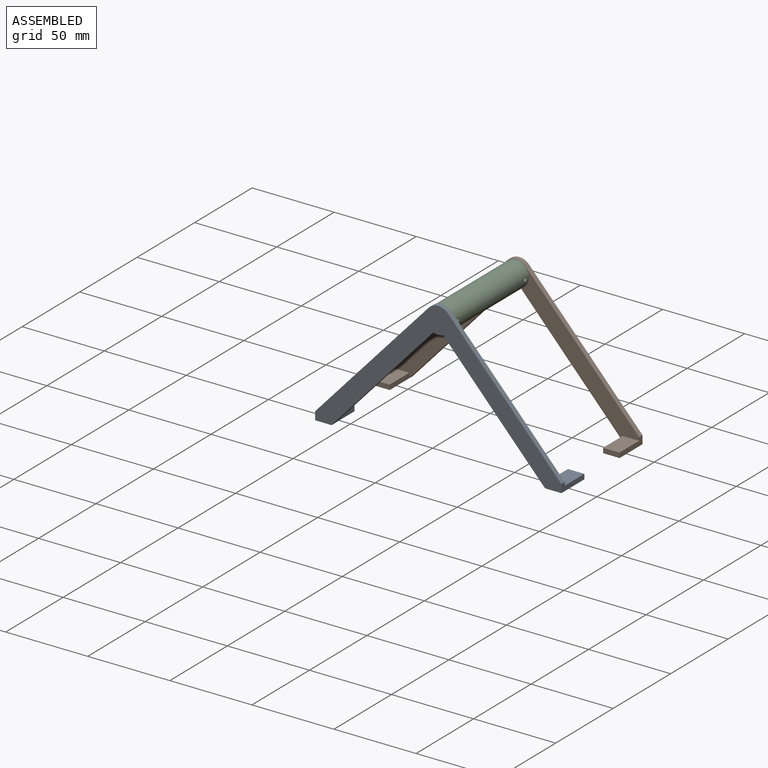
[diagram: assembled view]
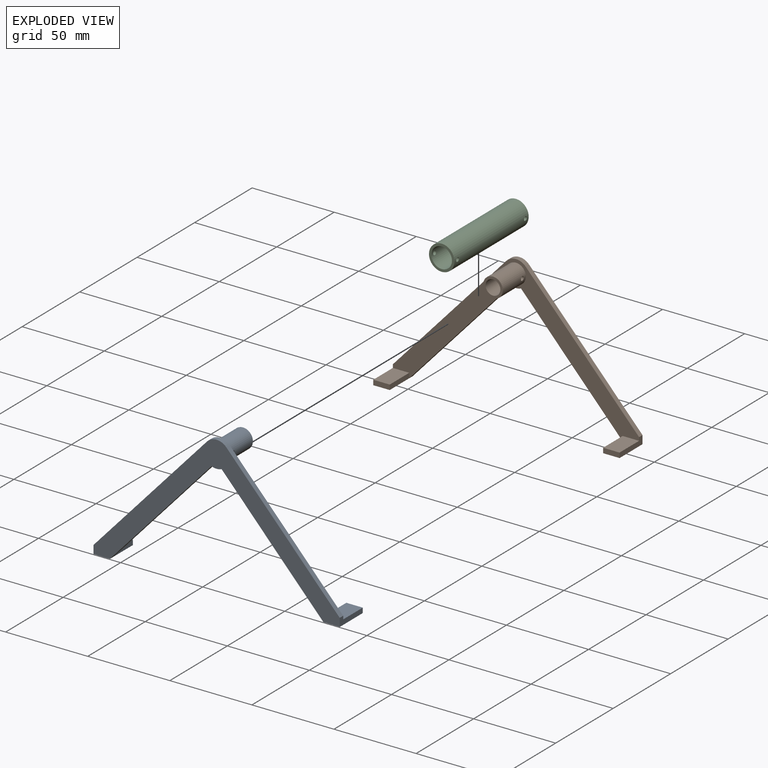
[diagram: exploded view]
GUIDED TOUR — MATED ASSEMBLY (Onshape document 33ff3acba00f217c9bf932b7, AutoMate assembly 33ff3acba00f217c9bf932b7_6a338ac31f6285e5d6c08767_4435f5d66699d6da19a7202c_default)

This assembly has 3 components, labeled P0..P2 below (a component is one placed occurrence of a part; the same part can appear more than once), held together by 2 mates. A mate is a constraint between two components; its type names the relative motion it leaves free:
  FASTENED — locks the two components together rigidly (no relative motion).
Axis/direction vectors are unit vectors and 'through' points are millimeter coordinates, both in the assembly's world frame.

MATES
  1. FASTENED "Fastened 2": P1 <-> P2, direction (0.000, 1.000, 0.000) through (-38.44, 56.01, 66.66) mm
  2. FASTENED "Fastened 1": P0 <-> P2, direction (0.000, -1.000, 0.000) through (-38.44, -8.59, 66.66) mm

ASSEMBLY ORDER
  1. P1 — the base component [order verified]
  2. P0 [order verified]
  3. P2 [order verified]
Order-tag legend:
  [order verified] — this step's position reverses a verified removal order: the component was checked to insert without passing through the ones already placed.

Of the 3 components, 3 carry the full construction recipe — the FeatureScript program that regenerates the part's solid from scratch; the rest are supplied as boundary geometry only.
Each toured component is shown spotlighted twice — in the assembled view, then in the exploded view, where a leader line traces a displaced component back to its assembled socket (saturated green if recipe-attached, orange if geometry-only; every other component desaturated gray) — followed by its recipe or geometry summary and the mates that hold it.
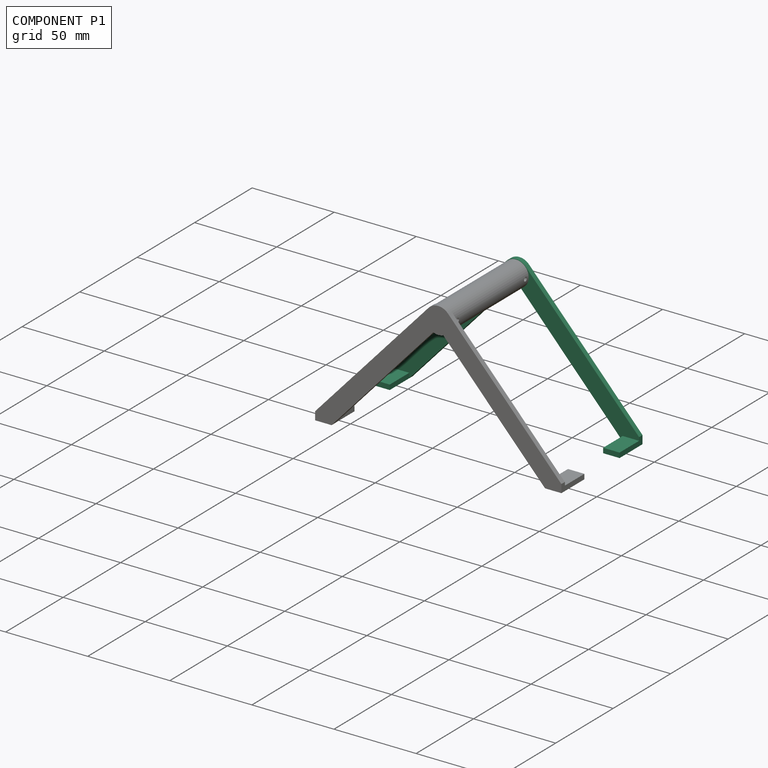
[diagram: component P1 — assembled]
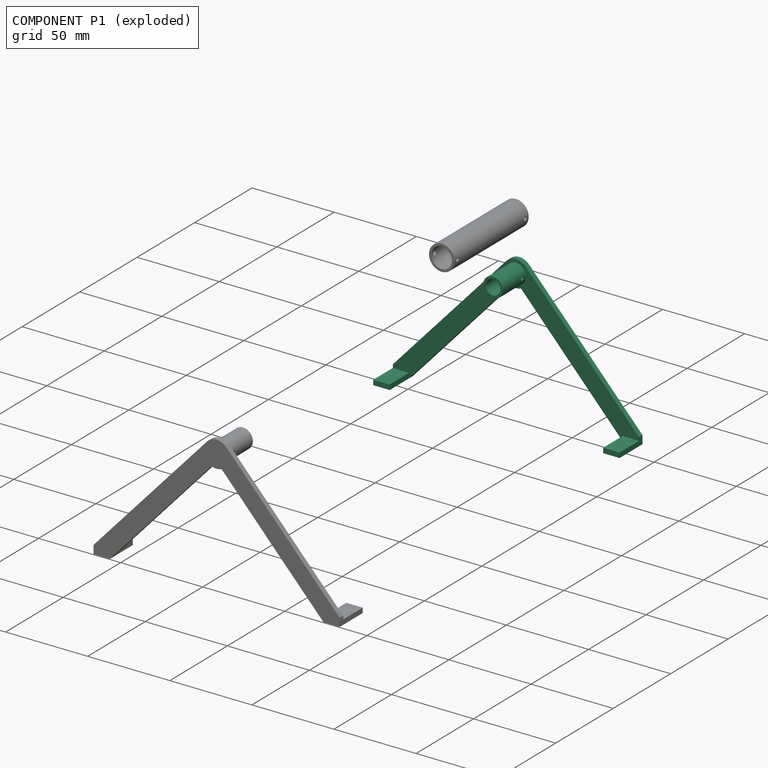
[diagram: component P1 — exploded]
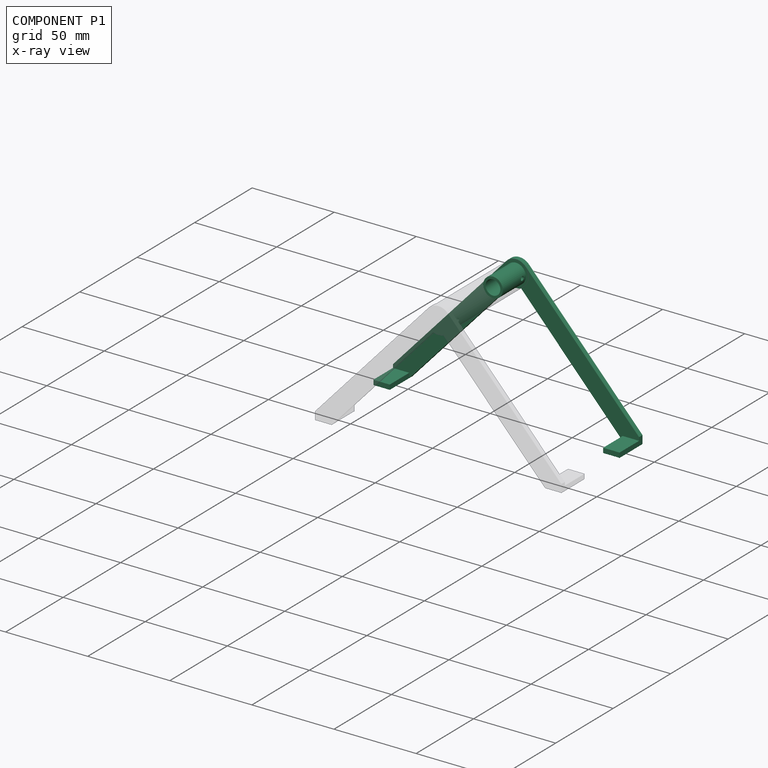
[diagram: component P1 — x-ray view]
COMPONENT P1 — same part as P0 (CADFS 00229331); its construction recipe is shown at P0.
Held by: FASTENED mate "Fastened 2" to P2.
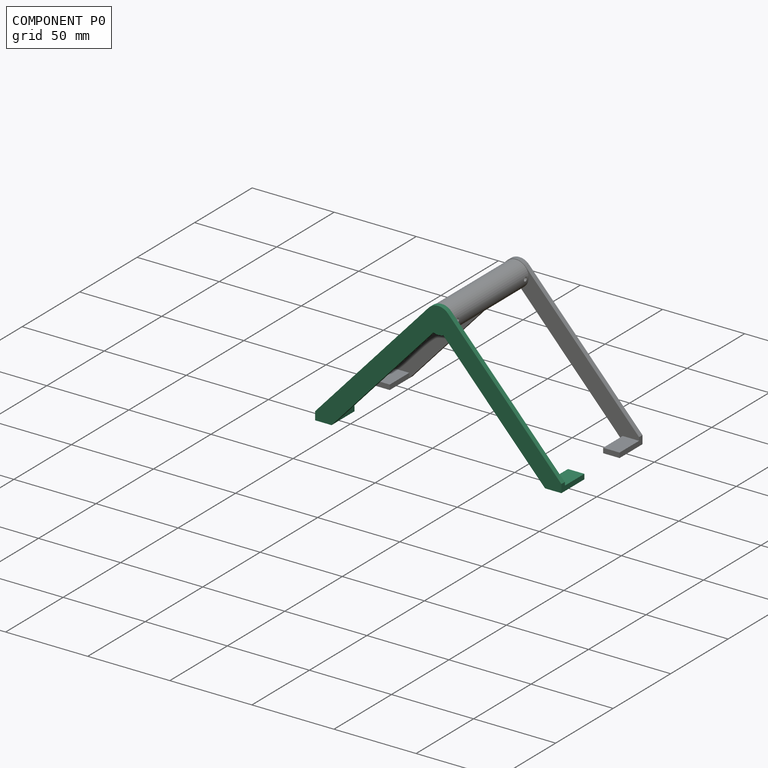
[diagram: component P0 — assembled]
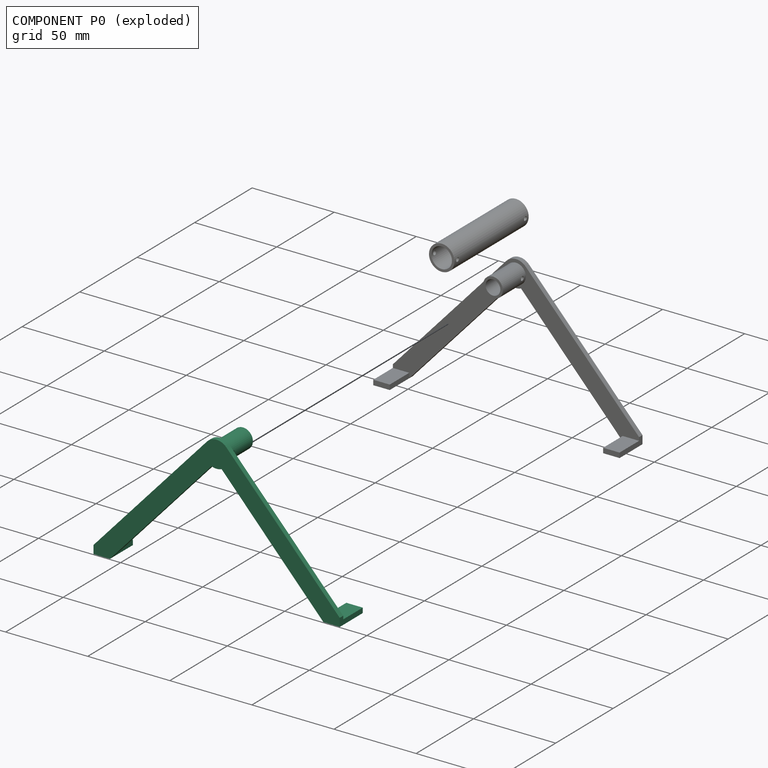
[diagram: component P0 — exploded]
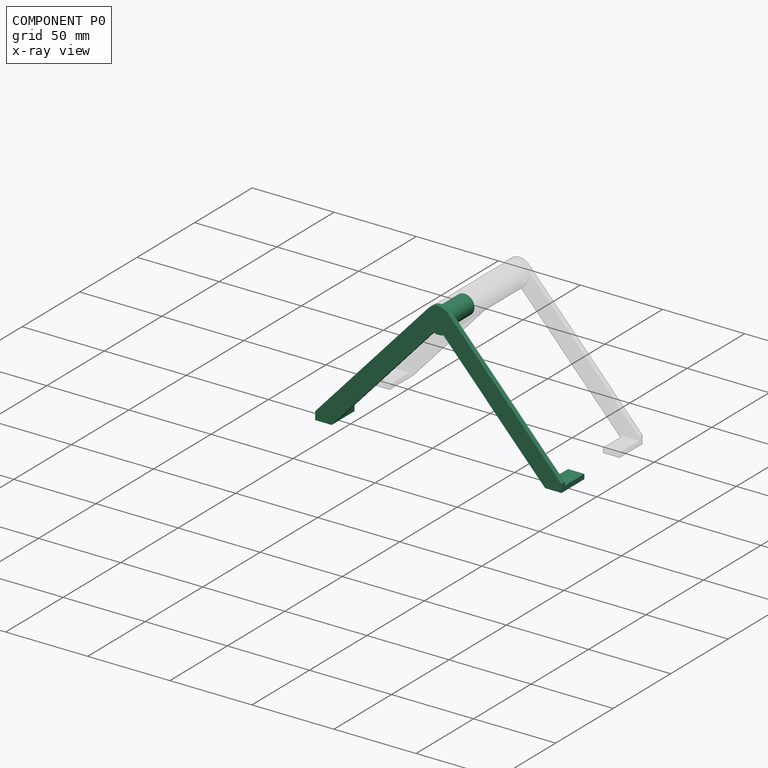
[diagram: component P0 — x-ray view]
COMPONENT P0 — recipe-attached (CADFS 00229331, mesh-verified: the recipe's output STEP matches this component's geometry to below the mesh-comparison resolution (tessellation chordal tolerance ~0.259 mm)).
Held by: FASTENED mate "Fastened 1" to P2.
Construction recipe (FeatureScript — the CAD program that rebuilds this solid; sketch coordinates are in the units given by the * unit suffixes, e.g. mm):

FeatureScript 2599;
import(path : "onshape/std/geometry.fs", version : "2599.0");
import(path : "onshape/std/common.fs", version : "2599.0");
const mm = millimeter;
const VERTEX = EntityType.VERTEX;
const EDGE = EntityType.EDGE;
const FACE = EntityType.FACE;
const BODY = EntityType.BODY;
function v(x, y){return vector(x, y);}
function OD(order){return orderDisambiguation(order);}
function OSD(set){return originalSetDisambiguation(set);}
function TD(topology){return topologyDisambiguation(topology);}
function TDD(query){return trueDependencyDisambiguation(query);}
function sQuery(a, b, c) {return sketchEntityQuery(a, b, c);}

annotation { "Feature Type Name" : "Feature", "Feature Type Description" : "" }
export const myFeature = defineFeature(function(context is Context, id is Id, definition is map)
    precondition{}
    {
        {
            var Q0;
            Q0=qCreatedBy(makeId("Front.planeOp"),FACE);
            var sketch = newSketch(context, id + "F0", { "sketchPlane" : qUnion([Q0])});
            skLineSegment(sketch, "E0", {"start": v(-75, 0) * mm, "end": v(-65, 0) * mm});
            skLineSegment(sketch, "E1", {"start": v(-75, 0) * mm, "end": v(-75, 5) * mm});
            skLineSegment(sketch, "E2", {"start": v(-75, 5) * mm, "end": v(-5.9, 80.4) * mm});
            skLineSegment(sketch, "E3.MirrorCS", {"start": v(75, 5) * mm, "end": v(5.9, 80.4) * mm});
            skLineSegment(sketch, "E4.MirrorCS", {"start": v(75, 0) * mm, "end": v(75, 5) * mm});
            skCircle(sketch, "E5", {"center": v(0, 75) * mm, "radius": 6 * mm, "construction": true});
            skArc(sketch, "E6", {"start": v(-3.05, 67.6) * mm, "mid": v(0, 67) * mm, "end": v(3.05, 67.6) * mm});
            skLineSegment(sketch, "E7", {"start": v(-65, 0) * mm, "end": v(-3.05, 67.6) * mm});
            skLineSegment(sketch, "E8.MirrorCS", {"start": v(65, 0) * mm, "end": v(3.05, 67.6) * mm});
            skArc(sketch, "E9.trimOffspring", {"start": v(5.9, 80.4) * mm, "mid": v(0, 83) * mm, "end": v(-5.9, 80.4) * mm});
            skLineSegment(sketch, "E10.trimOffspring", {"start": v(65, 0) * mm, "end": v(75, 0) * mm});
            skSolve(sketch);
        }
        {
            var Q0;
            Q0=makeQuery(id+"F0.imprint","IMPRINT",FACE,{"disambiguationData":[TD([[makeQuery(id+"F0.imprint","IMPRINT",EDGE,{"derivedFrom":sQuery(id+"F0.wireOp",EDGE,"E0")}),1.0]])]});
            extrude(context, id + "F1", {"entities" : qUnion([Q0]), "oppositeDirection" : true, "depth" : 3 * mm});
        }
        {
            var Q0;
            Q0=makeQuery(id+"F1.opExtrude","CAP_FACE",FACE,{"disambiguationData":[OSD([sQuery(id+"F0.wireOp",EDGE,"E0"),sQuery(id+"F0.wireOp",EDGE,"E1"),sQuery(id+"F0.wireOp",EDGE,"E2"),sQuery(id+"F0.wireOp",EDGE,"E3.MirrorCS"),sQuery(id+"F0.wireOp",EDGE,"E4.MirrorCS"),sQuery(id+"F0.wireOp",EDGE,"E6"),sQuery(id+"F0.wireOp",EDGE,"E7"),sQuery(id+"F0.wireOp",EDGE,"E8.MirrorCS"),sQuery(id+"F0.wireOp",EDGE,"E9.trimOffspring"),sQuery(id+"F0.wireOp",EDGE,"E10.trimOffspring")])],"isStart":false});
            var sketch = newSketch(context, id + "F2", { "sketchPlane" : qUnion([Q0])});
            skCircle(sketch, "E11", {"center": v(0, 75) * mm, "radius": 6 * mm});
            skCircle(sketch, "E12", {"center": v(0, 75) * mm, "radius": 4.5 * mm});
            skSolve(sketch);
        }
        {
            var Q0;
            Q0 = qSketchRegion(id + "F2", true);
            extrude(context, id + "F3", {"entities" : qUnion([Q0]), "operationType" : NewBodyOperationType.ADD, "depth" : 20 * mm});
        }
        {
            var Q0;
            {var subQ0=sQuery(id+"F0.wireOp",EDGE,"E10.trimOffspring");var subQ1=sQuery(id+"F0.wireOp",EDGE,"E8.MirrorCS");var subQ2=sQuery(id+"F0.wireOp",EDGE,"E7");var subQ3=sQuery(id+"F0.wireOp",EDGE,"E6");var subQ4=sQuery(id+"F0.wireOp",EDGE,"E4.MirrorCS");var subQ5=sQuery(id+"F0.wireOp",EDGE,"E0");var subQ6=sQuery(id+"F0.wireOp",EDGE,"E9.trimOffspring");var subQ7=sQuery(id+"F0.wireOp",EDGE,"E1");var subQ8=sQuery(id+"F0.wireOp",EDGE,"E2");var subQ9=sQuery(id+"F0.wireOp",EDGE,"E3.MirrorCS");Q0=makeQuery(id+"F3.boolean.opBoolean","SPLIT",FACE,{"disambiguationData":[TD([makeQuery(id+"F1.opExtrude","SWEPT_FACE",FACE,{"disambiguationData":[OSD([subQ5])]})])],"derivedFrom":makeQuery(id+"F1.opExtrude","CAP_FACE",FACE,{"disambiguationData":[OSD([subQ5,subQ7,subQ8,subQ9,subQ4,subQ3,subQ2,subQ1,subQ6,subQ0])],"isStart":false})});}
            var sketch = newSketch(context, id + "F4", { "sketchPlane" : qUnion([Q0])});
            skLineSegment(sketch, "E13.bottom", {"start": v(-75, 0) * mm, "end": v(-65, 0) * mm});
            skLineSegment(sketch, "E13.top", {"start": v(-75, 3) * mm, "end": v(-65, 3) * mm});
            skLineSegment(sketch, "E13.left", {"start": v(-75, 0) * mm, "end": v(-75, 3) * mm});
            skLineSegment(sketch, "E13.right", {"start": v(-65, 0) * mm, "end": v(-65, 3) * mm});
            skLineSegment(sketch, "E14.bottom", {"start": v(75, 0) * mm, "end": v(65, 0) * mm});
            skLineSegment(sketch, "E14.top", {"start": v(75, 3) * mm, "end": v(65, 3) * mm});
            skLineSegment(sketch, "E14.left", {"start": v(75, 0) * mm, "end": v(75, 3) * mm});
            skLineSegment(sketch, "E14.right", {"start": v(65, 0) * mm, "end": v(65, 3) * mm});
            skSolve(sketch);
        }
        {
            var Q0;
            Q0 = qSketchRegion(id + "F4", true);
            extrude(context, id + "F5", {"entities" : qUnion([Q0]), "operationType" : NewBodyOperationType.ADD, "depth" : 17 * mm});
        }
        {
            var Q0;
            Q0=qCreatedBy(makeId("Right.planeOp"),FACE);
            var sketch = newSketch(context, id + "F6", { "sketchPlane" : qUnion([Q0])});
            skCircle(sketch, "E15", {"center": v(6, 75) * mm, "radius": 1.25 * mm});
            skSolve(sketch);
        }
        {
            var Q0;
            Q0 = qSketchRegion(id + "F6", true);
            extrude(context, id + "F7", {"entities" : qUnion([Q0]), "operationType" : NewBodyOperationType.REMOVE, "oppositeDirection" : true, "depth" : 25 * mm, "symmetric" : true});
        }
    });
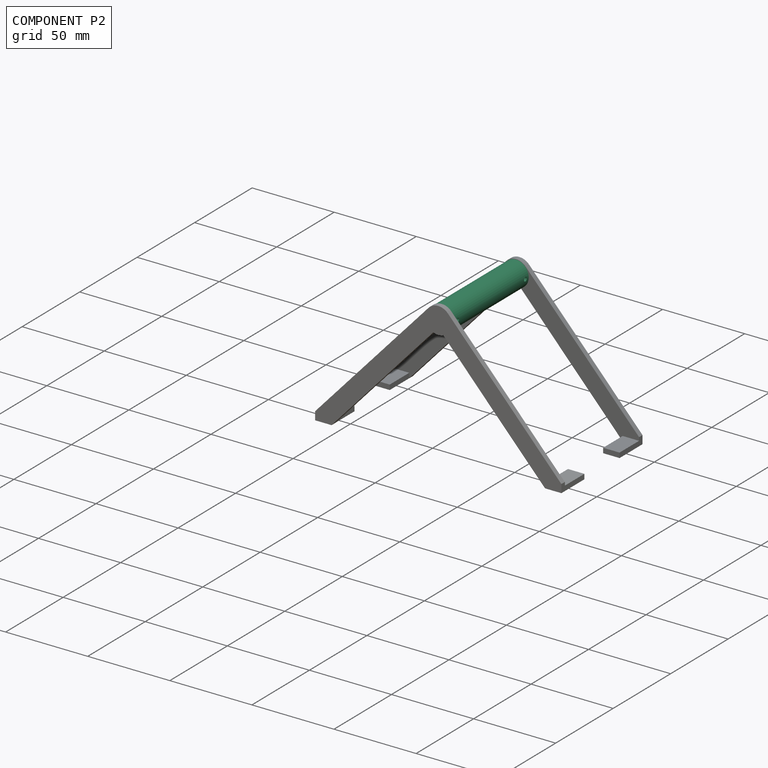
[diagram: component P2 — assembled]
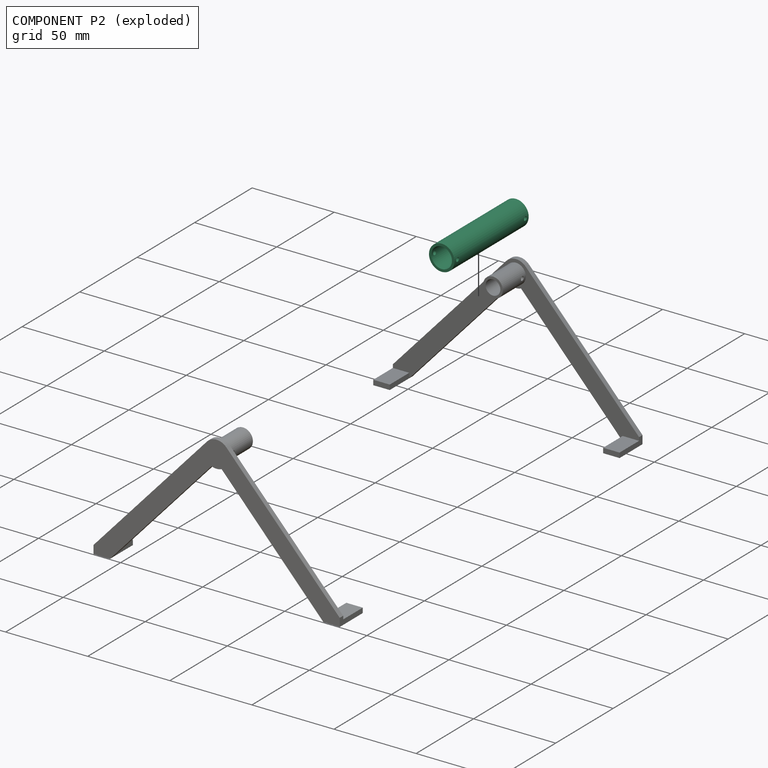
[diagram: component P2 — exploded]
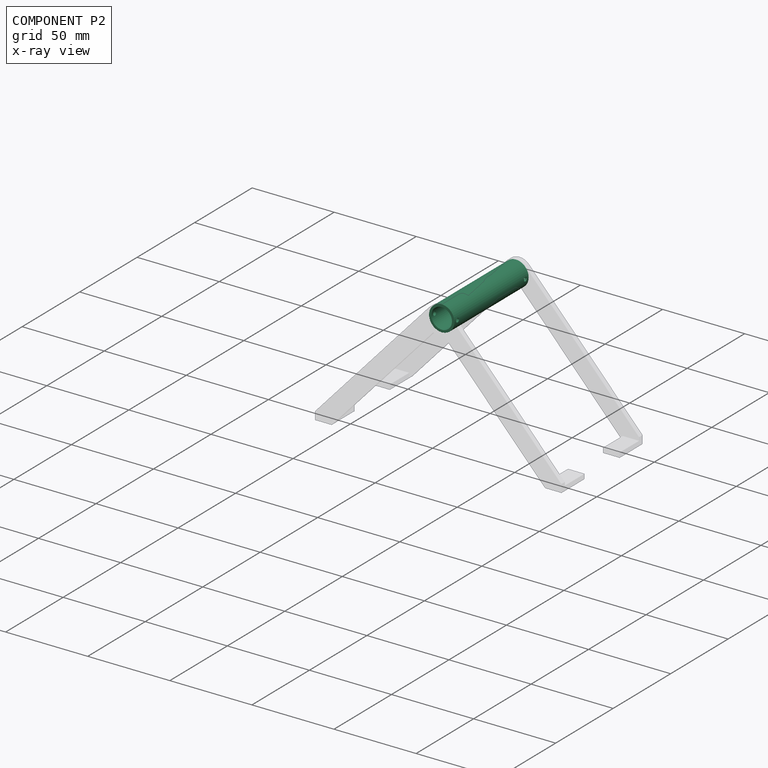
[diagram: component P2 — x-ray view]
COMPONENT P2 — recipe-attached (CADFS 00229332, mesh-verified: the recipe's output STEP matches this component's geometry to below the mesh-comparison resolution (tessellation chordal tolerance ~0.102 mm)).
Held by: FASTENED mate "Fastened 2" to P1; FASTENED mate "Fastened 1" to P0.
Construction recipe (FeatureScript — the CAD program that rebuilds this solid; sketch coordinates are in the units given by the * unit suffixes, e.g. mm):

FeatureScript 2615;
import(path : "onshape/std/geometry.fs", version : "2615.0");
import(path : "onshape/std/common.fs", version : "2615.0");
const mm = millimeter;
const VERTEX = EntityType.VERTEX;
const EDGE = EntityType.EDGE;
const FACE = EntityType.FACE;
const BODY = EntityType.BODY;
function v(x, y){return vector(x, y);}
function OD(order){return orderDisambiguation(order);}
function OSD(set){return originalSetDisambiguation(set);}
function TD(topology){return topologyDisambiguation(topology);}
function TDD(query){return trueDependencyDisambiguation(query);}
function sQuery(a, b, c) {return sketchEntityQuery(a, b, c);}

annotation { "Feature Type Name" : "Feature", "Feature Type Description" : "" }
export const myFeature = defineFeature(function(context is Context, id is Id, definition is map)
    precondition{}
    {
        {
            var Q0;
            Q0=qCreatedBy(makeId("Right.planeOp"),FACE);
            var sketch = newSketch(context, id + "F0", { "sketchPlane" : qUnion([Q0])});
            skCircle(sketch, "E0", {"center": v(0, 0) * mm, "radius": 6.25 * mm});
            skCircle(sketch, "E1", {"center": v(0, 0) * mm, "radius": 7.75 * mm});
            skSolve(sketch);
        }
        {
            var Q0;
            Q0 = qSketchRegion(id + "F0", true);
            extrude(context, id + "F1", {"entities" : qUnion([Q0]), "depth" : 64.6 * mm, "symmetric" : true});
        }
        {
            var Q0;
            Q0=qCreatedBy(makeId("Front.planeOp"),FACE);
            var sketch = newSketch(context, id + "F2", { "sketchPlane" : qUnion([Q0])});
            skCircle(sketch, "E2", {"center": v(-29.5, 0) * mm, "radius": 1.25 * mm});
            skCircle(sketch, "E3", {"center": v(29.5, 0) * mm, "radius": 1.25 * mm});
            skSolve(sketch);
        }
        {
            var Q0;
            Q0 = qSketchRegion(id + "F2", true);
            extrude(context, id + "F3", {"entities" : qUnion([Q0]), "operationType" : NewBodyOperationType.REMOVE, "oppositeDirection" : true, "depth" : 25 * mm, "symmetric" : true});
        }
    });
PROVENANCE & LICENSES
Assembly (occurrences, transforms, mates, per-part STEP geometry): AutoMate dataset, Zenodo record 7776208, CC0.
Construction recipes: CADFS (HuggingFace VladPyatov/CADFS, CC-BY-4.0, layered over the ABC dataset), FeatureScript reconstruction programs keyed by ABC model id.
Join: ABC meta listings map ABC model id -> Onshape documentId; within a shared document, parts are matched by geometric signature (bounding-box dims + volume at 0.1% relative tolerance, exact B-rep face/solid counts).
Verification: 3 of this assembly's 3 components carry a recipe attachment, and every attachment is mesh-verified: the CADFS STEP and the AutoMate member STEP were compared as meshes in their shared local frame (symmetric sampled-point-to-mesh distance); worst across the 3 attachments: below the mesh-comparison resolution (tessellation chordal tolerance ~0.259 mm) on a 173 mm part.
Renders: orthographic iso camera (az 35 / el 25); the floor grid conveys scale (grid pitch printed in each image; no ruler). In the exploded view each component is displaced by its stored offset vector: the offsets alone carry the explosion direction (mate normal/axis signs are not orientation cues and do not encode it), and separation distances are assigned per mate-chain, not proportionally to assembly-order depth.
